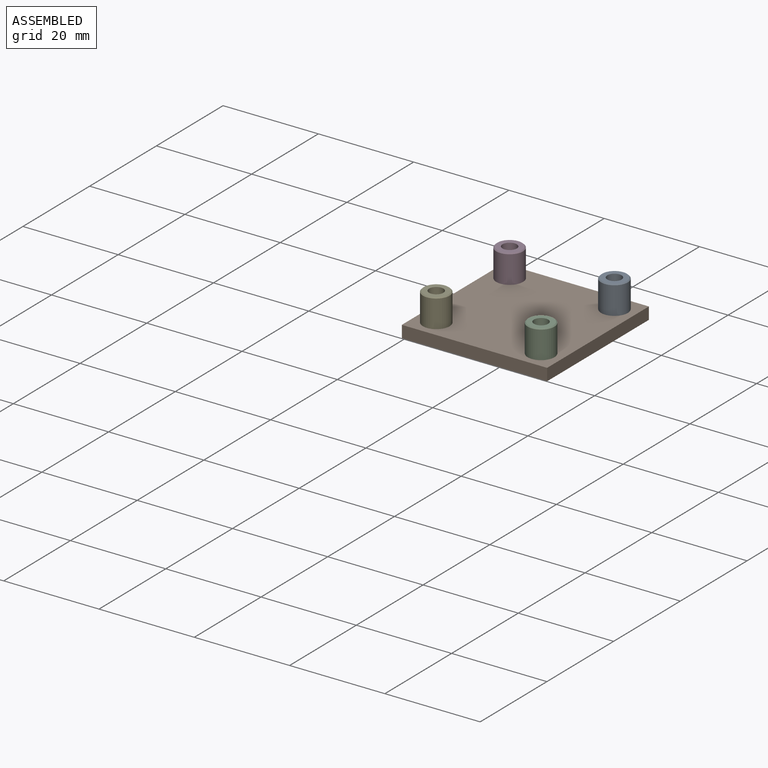
[diagram: assembled view]
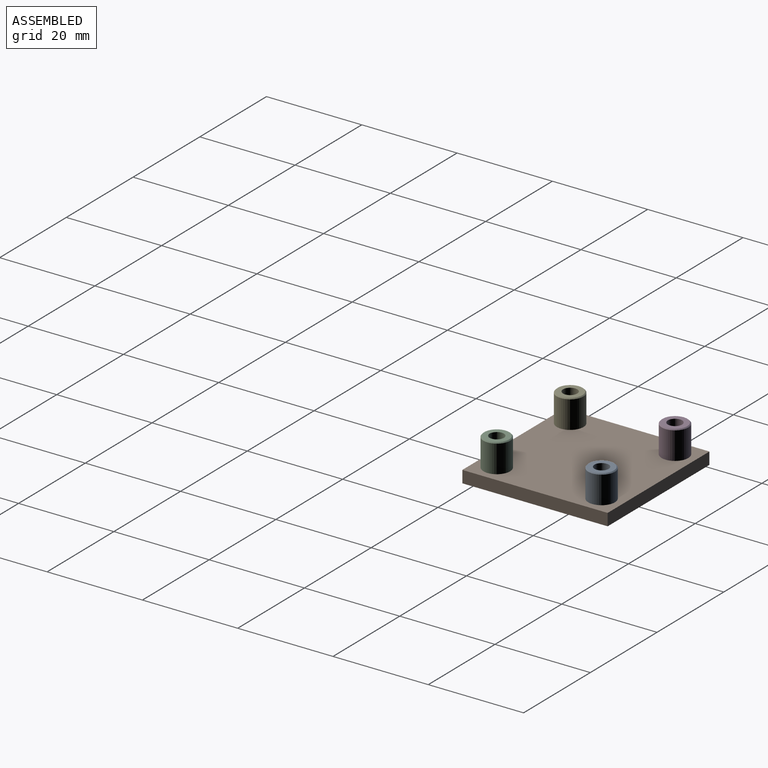
[diagram: assembled view, second angle]
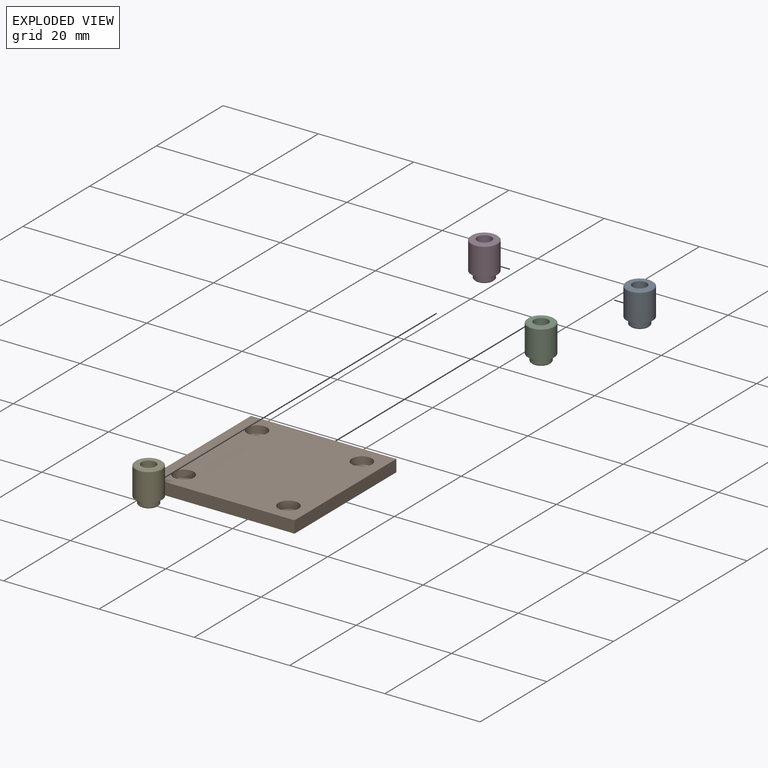
[diagram: exploded view]
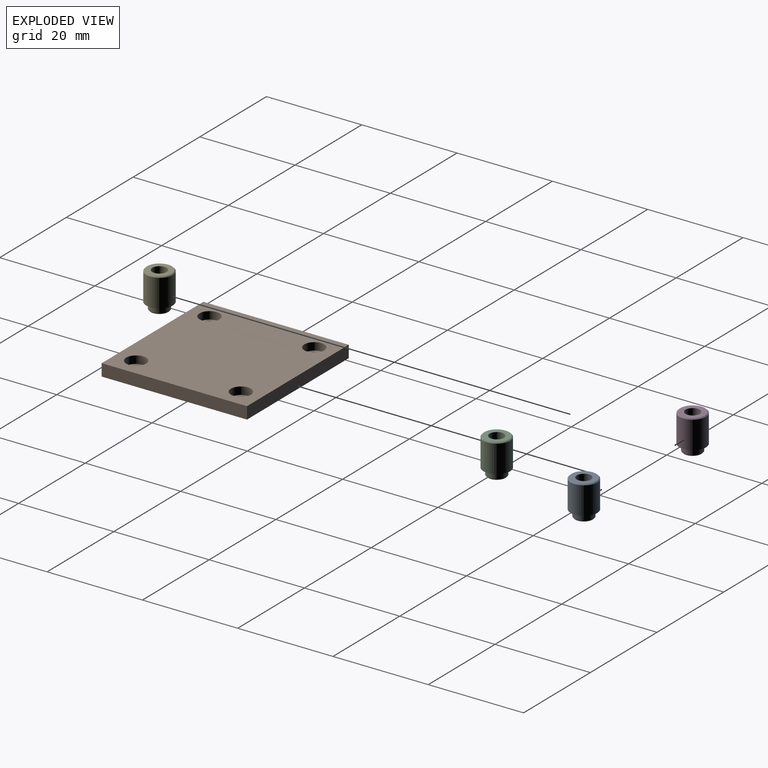
[diagram: exploded view, second angle]
ASSEMBLY  parts=5 mates=4
PART A: 8 faces, bbox 5.6x5.6x7.5 mm
  f0: plane 5.2x5.2mm, normal (0,0,1), area 14.2mm2, adj f5,f7
  f1: plane 3.6x3.6mm, normal (0,0,-1), area 3.1mm2, adj f5,f6
  f2: cylinder r=2mm len=4mm, axis (0,0,1), area 16.7mm2, adj f3,f6
  f3: plane 5.6x5.6mm, normal (0,0,-1), area 12.1mm2, adj f2,f4
  f4: cylinder r=2.8mm len=5.8mm, axis (0,0,1), area 102mm2, adj f3,f7
  f5: cylinder r=1.5mm len=7.53mm, axis (0,0,1), area 71mm2, adj f0,f1
  f6: cone r=2mm half-angle=45deg, axis (0,0,1), area 3.4mm2, adj f1,f2
  f7: cone r=2.6mm half-angle=45deg, axis (0,0,-1), area 4.8mm2, adj f0,f4
PART B: 334 faces, bbox 30.5x30.5x2.6 mm
  f0: plane 30.5x2.54mm, normal (0,1,0), area 77.5mm2, adj f1,f3,f4,f5
  f1: plane 30.5x2.54mm, normal (-1,0,0), area 77.5mm2, adj f0,f2,f4,f5
  f2: plane 30.5x2.54mm, normal (0,-1,0), area 77.5mm2, adj f1,f3,f4,f5
  f3: plane 30.5x2.54mm, normal (1,0,0), area 77.5mm2, adj f0,f2,f4,f5
  f4: plane 30.5x30.5mm, normal (0,0,1), area 874.3mm2, adj f0,f1,f2,f3,f326,f328,f330,f332
  f5: plane 30.5x30.5mm, normal (0,0,-1), area 146.2mm2, adj f0,f1,f2,f3,f6,f7,f8,f9
  f6: plane 3.5x0.1mm, normal (-1,0,0), area 0.4mm2, adj f5,f7,f9,f10
  f7: plane 3.5x0.1mm, normal (0,1,0), area 0.4mm2, adj f5,f6,f8,f10
  f8: plane 3.5x0.1mm, normal (1,0,0), area 0.4mm2, adj f5,f7,f9,f10
  f9: plane 3.5x0.1mm, normal (0,-1,0), area 0.4mm2, adj f5,f6,f8,f10
  f10: plane 3.5x3.5mm, normal (0,0,-1), area 12.2mm2, adj f6,f7,f8,f9
  f11: plane 3.5x0.1mm, normal (-1,0,0), area 0.4mm2, adj f5,f12,f14,f15
  f12: plane 3.5x0.1mm, normal (0,1,0), area 0.4mm2, adj f5,f11,f13,f15
  f13: plane 3.5x0.1mm, normal (1,0,0), area 0.4mm2, adj f5,f12,f14,f15
  f14: plane 3.5x0.1mm, normal (0,-1,0), area 0.4mm2, adj f5,f11,f13,f15
  f15: plane 3.5x3.5mm, normal (0,0,-1), area 12.2mm2, adj f11,f12,f13,f14
  f16: plane 3.5x0.1mm, normal (-1,0,0), area 0.4mm2, adj f5,f17,f19,f20
  f17: plane 3.5x0.1mm, normal (0,1,0), area 0.4mm2, adj f5,f16,f18,f20
  f18: plane 3.5x0.1mm, normal (1,0,0), area 0.4mm2, adj f5,f17,f19,f20
  f19: plane 3.5x0.1mm, normal (0,-1,0), area 0.4mm2, adj f5,f16,f18,f20
  f20: plane 3.5x3.5mm, normal (0,0,-1), area 12.2mm2, adj f16,f17,f18,f19
  f21: plane 3.5x0.1mm, normal (-1,0,0), area 0.4mm2, adj f5,f22,f24,f25
  f22: plane 3.5x0.1mm, normal (0,1,0), area 0.4mm2, adj f5,f21,f23,f25
  f23: plane 3.5x0.1mm, normal (1,0,0), area 0.4mm2, adj f5,f22,f24,f25
  f24: plane 3.5x0.1mm, normal (0,-1,0), area 0.4mm2, adj f5,f21,f23,f25
  f25: plane 3.5x3.5mm, normal (0,0,-1), area 12.2mm2, adj f21,f22,f23,f24
  f26: plane 3.5x0.1mm, normal (-1,0,0), area 0.4mm2, adj f5,f27,f29,f30
  f27: plane 3.5x0.1mm, normal (0,1,0), area 0.4mm2, adj f5,f26,f28,f30
  f28: plane 3.5x0.1mm, normal (1,0,0), area 0.4mm2, adj f5,f27,f29,f30
  f29: plane 3.5x0.1mm, normal (0,-1,0), area 0.4mm2, adj f5,f26,f28,f30
  f30: plane 3.5x3.5mm, normal (0,0,-1), area 12.2mm2, adj f26,f27,f28,f29
  f31: plane 3.5x0.1mm, normal (-1,0,0), area 0.4mm2, adj f5,f32,f34,f35
  f32: plane 3.5x0.1mm, normal (0,1,0), area 0.4mm2, adj f5,f31,f33,f35
  f33: plane 3.5x0.1mm, normal (1,0,0), area 0.4mm2, adj f5,f32,f34,f35
  f34: plane 3.5x0.1mm, normal (0,-1,0), area 0.4mm2, adj f5,f31,f33,f35
  f35: plane 3.5x3.5mm, normal (0,0,-1), area 12.2mm2, adj f31,f32,f33,f34
  f36: plane 3.5x0.1mm, normal (-1,0,0), area 0.4mm2, adj f5,f37,f39,f40
  f37: plane 3.5x0.1mm, normal (0,1,0), area 0.4mm2, adj f5,f36,f38,f40
  f38: plane 3.5x0.1mm, normal (1,0,0), area 0.4mm2, adj f5,f37,f39,f40
  f39: plane 3.5x0.1mm, normal (0,-1,0), area 0.4mm2, adj f5,f36,f38,f40
  f40: plane 3.5x3.5mm, normal (0,0,-1), area 12.2mm2, adj f36,f37,f38,f39
  f41: plane 3.5x0.1mm, normal (-1,0,0), area 0.4mm2, adj f5,f42,f44,f45
  f42: plane 3.5x0.1mm, normal (0,1,0), area 0.4mm2, adj f5,f41,f43,f45
  f43: plane 3.5x0.1mm, normal (1,0,0), area 0.4mm2, adj f5,f42,f44,f45
  f44: plane 3.5x0.1mm, normal (0,-1,0), area 0.4mm2, adj f5,f41,f43,f45
  f45: plane 3.5x3.5mm, normal (0,0,-1), area 12.2mm2, adj f41,f42,f43,f44
  f46: plane 3.5x0.1mm, normal (-1,0,0), area 0.4mm2, adj f5,f47,f49,f50
  f47: plane 3.5x0.1mm, normal (0,1,0), area 0.4mm2, adj f5,f46,f48,f50
  f48: plane 3.5x0.1mm, normal (1,0,0), area 0.4mm2, adj f5,f47,f49,f50
  f49: plane 3.5x0.1mm, normal (0,-1,0), area 0.4mm2, adj f5,f46,f48,f50
  f50: plane 3.5x3.5mm, normal (0,0,-1), area 12.2mm2, adj f46,f47,f48,f49
  f51: plane 3.5x0.1mm, normal (-1,0,0), area 0.4mm2, adj f5,f52,f54,f55
  f52: plane 3.5x0.1mm, normal (0,1,0), area 0.4mm2, adj f5,f51,f53,f55
  f53: plane 3.5x0.1mm, normal (1,0,0), area 0.4mm2, adj f5,f52,f54,f55
  f54: plane 3.5x0.1mm, normal (0,-1,0), area 0.4mm2, adj f5,f51,f53,f55
  f55: plane 3.5x3.5mm, normal (0,0,-1), area 12.2mm2, adj f51,f52,f53,f54
  f56: plane 3.5x0.1mm, normal (-1,0,0), area 0.4mm2, adj f5,f57,f59,f60
  f57: plane 3.5x0.1mm, normal (0,1,0), area 0.4mm2, adj f5,f56,f58,f60
  f58: plane 3.5x0.1mm, normal (1,0,0), area 0.4mm2, adj f5,f57,f59,f60
  f59: plane 3.5x0.1mm, normal (0,-1,0), area 0.4mm2, adj f5,f56,f58,f60
  f60: plane 3.5x3.5mm, normal (0,0,-1), area 12.2mm2, adj f56,f57,f58,f59
  f61: plane 3.5x0.1mm, normal (-1,0,0), area 0.4mm2, adj f5,f62,f64,f65
  f62: plane 3.5x0.1mm, normal (0,1,0), area 0.4mm2, adj f5,f61,f63,f65
  f63: plane 3.5x0.1mm, normal (1,0,0), area 0.4mm2, adj f5,f62,f64,f65
  f64: plane 3.5x0.1mm, normal (0,-1,0), area 0.4mm2, adj f5,f61,f63,f65
  f65: plane 3.5x3.5mm, normal (0,0,-1), area 12.2mm2, adj f61,f62,f63,f64
  f66: plane 3.5x0.1mm, normal (-1,0,0), area 0.4mm2, adj f5,f67,f69,f70
  f67: plane 3.5x0.1mm, normal (0,1,0), area 0.4mm2, adj f5,f66,f68,f70
  f68: plane 3.5x0.1mm, normal (1,0,0), area 0.4mm2, adj f5,f67,f69,f70
  f69: plane 3.5x0.1mm, normal (0,-1,0), area 0.4mm2, adj f5,f66,f68,f70
  f70: plane 3.5x3.5mm, normal (0,0,-1), area 12.2mm2, adj f66,f67,f68,f69
  f71: plane 3.5x0.1mm, normal (-1,0,0), area 0.4mm2, adj f5,f72,f74,f75
  f72: plane 3.5x0.1mm, normal (0,1,0), area 0.4mm2, adj f5,f71,f73,f75
  f73: plane 3.5x0.1mm, normal (1,0,0), area 0.4mm2, adj f5,f72,f74,f75
  f74: plane 3.5x0.1mm, normal (0,-1,0), area 0.4mm2, adj f5,f71,f73,f75
  f75: plane 3.5x3.5mm, normal (0,0,-1), area 12.2mm2, adj f71,f72,f73,f74
  f76: plane 3.5x0.1mm, normal (-1,0,0), area 0.4mm2, adj f5,f77,f79,f80
  f77: plane 3.5x0.1mm, normal (0,1,0), area 0.4mm2, adj f5,f76,f78,f80
  f78: plane 3.5x0.1mm, normal (1,0,0), area 0.4mm2, adj f5,f77,f79,f80
  f79: plane 3.5x0.1mm, normal (0,-1,0), area 0.4mm2, adj f5,f76,f78,f80
  f80: plane 3.5x3.5mm, normal (0,0,-1), area 12.2mm2, adj f76,f77,f78,f79
  f81: plane 3.5x0.1mm, normal (-1,0,0), area 0.4mm2, adj f5,f82,f84,f85
  f82: plane 3.5x0.1mm, normal (0,1,0), area 0.4mm2, adj f5,f81,f83,f85
  f83: plane 3.5x0.1mm, normal (1,0,0), area 0.4mm2, adj f5,f82,f84,f85
  f84: plane 3.5x0.1mm, normal (0,-1,0), area 0.4mm2, adj f5,f81,f83,f85
  f85: plane 3.5x3.5mm, normal (0,0,-1), area 12.2mm2, adj f81,f82,f83,f84
  f86: plane 3.5x0.1mm, normal (-1,0,0), area 0.4mm2, adj f5,f87,f89,f90
  f87: plane 3.5x0.1mm, normal (0,1,0), area 0.4mm2, adj f5,f86,f88,f90
  f88: plane 3.5x0.1mm, normal (1,0,0), area 0.4mm2, adj f5,f87,f89,f90
  f89: plane 3.5x0.1mm, normal (0,-1,0), area 0.4mm2, adj f5,f86,f88,f90
  f90: plane 3.5x3.5mm, normal (0,0,-1), area 12.2mm2, adj f86,f87,f88,f89
  f91: plane 3.5x0.1mm, normal (-1,0,0), area 0.4mm2, adj f5,f92,f94,f95
  f92: plane 3.5x0.1mm, normal (0,1,0), area 0.4mm2, adj f5,f91,f93,f95
  f93: plane 3.5x0.1mm, normal (1,0,0), area 0.4mm2, adj f5,f92,f94,f95
  f94: plane 3.5x0.1mm, normal (0,-1,0), area 0.4mm2, adj f5,f91,f93,f95
  f95: plane 3.5x3.5mm, normal (0,0,-1), area 12.2mm2, adj f91,f92,f93,f94
  f96: plane 3.5x0.1mm, normal (-1,0,0), area 0.4mm2, adj f5,f97,f99,f100
  f97: plane 3.5x0.1mm, normal (0,1,0), area 0.4mm2, adj f5,f96,f98,f100
  f98: plane 3.5x0.1mm, normal (1,0,0), area 0.4mm2, adj f5,f97,f99,f100
  f99: plane 3.5x0.1mm, normal (0,-1,0), area 0.4mm2, adj f5,f96,f98,f100
  f100: plane 3.5x3.5mm, normal (0,0,-1), area 12.2mm2, adj f96,f97,f98,f99
  f101: plane 3.5x0.1mm, normal (-1,0,0), area 0.4mm2, adj f5,f102,f104,f105
  f102: plane 3.5x0.1mm, normal (0,1,0), area 0.4mm2, adj f5,f101,f103,f105
  f103: plane 3.5x0.1mm, normal (1,0,0), area 0.4mm2, adj f5,f102,f104,f105
  f104: plane 3.5x0.1mm, normal (0,-1,0), area 0.4mm2, adj f5,f101,f103,f105
  f105: plane 3.5x3.5mm, normal (0,0,-1), area 12.2mm2, adj f101,f102,f103,f104
  f106: plane 3.5x0.1mm, normal (-1,0,0), area 0.4mm2, adj f5,f107,f109,f110
  f107: plane 3.5x0.1mm, normal (0,1,0), area 0.4mm2, adj f5,f106,f108,f110
  f108: plane 3.5x0.1mm, normal (1,0,0), area 0.4mm2, adj f5,f107,f109,f110
  f109: plane 3.5x0.1mm, normal (0,-1,0), area 0.4mm2, adj f5,f106,f108,f110
  f110: plane 3.5x3.5mm, normal (0,0,-1), area 12.2mm2, adj f106,f107,f108,f109
  f111: plane 3.5x0.1mm, normal (-1,0,0), area 0.4mm2, adj f5,f112,f114,f115
  f112: plane 3.5x0.1mm, normal (0,1,0), area 0.4mm2, adj f5,f111,f113,f115
  f113: plane 3.5x0.1mm, normal (1,0,0), area 0.4mm2, adj f5,f112,f114,f115
  f114: plane 3.5x0.1mm, normal (0,-1,0), area 0.4mm2, adj f5,f111,f113,f115
  f115: plane 3.5x3.5mm, normal (0,0,-1), area 12.2mm2, adj f111,f112,f113,f114
  f116: plane 3.5x0.1mm, normal (-1,0,0), area 0.4mm2, adj f5,f117,f119,f120
  f117: plane 3.5x0.1mm, normal (0,1,0), area 0.4mm2, adj f5,f116,f118,f120
  f118: plane 3.5x0.1mm, normal (1,0,0), area 0.4mm2, adj f5,f117,f119,f120
  f119: plane 3.5x0.1mm, normal (0,-1,0), area 0.4mm2, adj f5,f116,f118,f120
  f120: plane 3.5x3.5mm, normal (0,0,-1), area 12.2mm2, adj f116,f117,f118,f119
  f121: plane 3.5x0.1mm, normal (-1,0,0), area 0.4mm2, adj f5,f122,f124,f125
  f122: plane 3.5x0.1mm, normal (0,1,0), area 0.4mm2, adj f5,f121,f123,f125
  f123: plane 3.5x0.1mm, normal (1,0,0), area 0.4mm2, adj f5,f122,f124,f125
  f124: plane 3.5x0.1mm, normal (0,-1,0), area 0.4mm2, adj f5,f121,f123,f125
  f125: plane 3.5x3.5mm, normal (0,0,-1), area 12.2mm2, adj f121,f122,f123,f124
  f126: plane 3.5x0.1mm, normal (-1,0,0), area 0.4mm2, adj f5,f127,f129,f130
  f127: plane 3.5x0.1mm, normal (0,1,0), area 0.4mm2, adj f5,f126,f128,f130
  f128: plane 3.5x0.1mm, normal (1,0,0), area 0.4mm2, adj f5,f127,f129,f130
  f129: plane 3.5x0.1mm, normal (0,-1,0), area 0.4mm2, adj f5,f126,f128,f130
  f130: plane 3.5x3.5mm, normal (0,0,-1), area 12.2mm2, adj f126,f127,f128,f129
  f131: plane 3.5x0.1mm, normal (-1,0,0), area 0.4mm2, adj f5,f132,f134,f135
  f132: plane 3.5x0.1mm, normal (0,1,0), area 0.4mm2, adj f5,f131,f133,f135
  f133: plane 3.5x0.1mm, normal (1,0,0), area 0.4mm2, adj f5,f132,f134,f135
  f134: plane 3.5x0.1mm, normal (0,-1,0), area 0.4mm2, adj f5,f131,f133,f135
  f135: plane 3.5x3.5mm, normal (0,0,-1), area 12.2mm2, adj f131,f132,f133,f134
  f136: plane 3.5x0.1mm, normal (-1,0,0), area 0.4mm2, adj f5,f137,f139,f140
  f137: plane 3.5x0.1mm, normal (0,1,0), area 0.4mm2, adj f5,f136,f138,f140
  f138: plane 3.5x0.1mm, normal (1,0,0), area 0.4mm2, adj f5,f137,f139,f140
  f139: plane 3.5x0.1mm, normal (0,-1,0), area 0.4mm2, adj f5,f136,f138,f140
  f140: plane 3.5x3.5mm, normal (0,0,-1), area 12.2mm2, adj f136,f137,f138,f139
  f141: plane 3.5x0.1mm, normal (-1,0,0), area 0.4mm2, adj f5,f142,f144,f145
  f142: plane 3.5x0.1mm, normal (0,1,0), area 0.4mm2, adj f5,f141,f143,f145
  f143: plane 3.5x0.1mm, normal (1,0,0), area 0.4mm2, adj f5,f142,f144,f145
  f144: plane 3.5x0.1mm, normal (0,-1,0), area 0.4mm2, adj f5,f141,f143,f145
  f145: plane 3.5x3.5mm, normal (0,0,-1), area 12.2mm2, adj f141,f142,f143,f144
  f146: plane 3.5x0.1mm, normal (-1,0,0), area 0.4mm2, adj f5,f147,f149,f150
  f147: plane 3.5x0.1mm, normal (0,1,0), area 0.4mm2, adj f5,f146,f148,f150
  f148: plane 3.5x0.1mm, normal (1,0,0), area 0.4mm2, adj f5,f147,f149,f150
  f149: plane 3.5x0.1mm, normal (0,-1,0), area 0.4mm2, adj f5,f146,f148,f150
  f150: plane 3.5x3.5mm, normal (0,0,-1), area 12.2mm2, adj f146,f147,f148,f149
  f151: plane 3.5x0.1mm, normal (-1,0,0), area 0.4mm2, adj f5,f152,f154,f155
  f152: plane 3.5x0.1mm, normal (0,1,0), area 0.4mm2, adj f5,f151,f153,f155
  f153: plane 3.5x0.1mm, normal (1,0,0), area 0.4mm2, adj f5,f152,f154,f155
  f154: plane 3.5x0.1mm, normal (0,-1,0), area 0.4mm2, adj f5,f151,f153,f155
  f155: plane 3.5x3.5mm, normal (0,0,-1), area 12.2mm2, adj f151,f152,f153,f154
  f156: plane 3.5x0.1mm, normal (-1,0,0), area 0.4mm2, adj f5,f157,f159,f160
  f157: plane 3.5x0.1mm, normal (0,1,0), area 0.4mm2, adj f5,f156,f158,f160
  f158: plane 3.5x0.1mm, normal (1,0,0), area 0.4mm2, adj f5,f157,f159,f160
  f159: plane 3.5x0.1mm, normal (0,-1,0), area 0.4mm2, adj f5,f156,f158,f160
  f160: plane 3.5x3.5mm, normal (0,0,-1), area 12.2mm2, adj f156,f157,f158,f159
  f161: plane 3.5x0.1mm, normal (-1,0,0), area 0.4mm2, adj f5,f162,f164,f165
  f162: plane 3.5x0.1mm, normal (0,1,0), area 0.4mm2, adj f5,f161,f163,f165
  f163: plane 3.5x0.1mm, normal (1,0,0), area 0.4mm2, adj f5,f162,f164,f165
  f164: plane 3.5x0.1mm, normal (0,-1,0), area 0.4mm2, adj f5,f161,f163,f165
  f165: plane 3.5x3.5mm, normal (0,0,-1), area 12.2mm2, adj f161,f162,f163,f164
  f166: plane 3.5x0.1mm, normal (-1,0,0), area 0.4mm2, adj f5,f167,f169,f170
  f167: plane 3.5x0.1mm, normal (0,1,0), area 0.4mm2, adj f5,f166,f168,f170
  f168: plane 3.5x0.1mm, normal (1,0,0), area 0.4mm2, adj f5,f167,f169,f170
  f169: plane 3.5x0.1mm, normal (0,-1,0), area 0.4mm2, adj f5,f166,f168,f170
  f170: plane 3.5x3.5mm, normal (0,0,-1), area 12.2mm2, adj f166,f167,f168,f169
  f171: plane 3.5x0.1mm, normal (-1,0,0), area 0.4mm2, adj f5,f172,f174,f175
  f172: plane 3.5x0.1mm, normal (0,1,0), area 0.4mm2, adj f5,f171,f173,f175
  f173: plane 3.5x0.1mm, normal (1,0,0), area 0.4mm2, adj f5,f172,f174,f175
  f174: plane 3.5x0.1mm, normal (0,-1,0), area 0.4mm2, adj f5,f171,f173,f175
  f175: plane 3.5x3.5mm, normal (0,0,-1), area 12.2mm2, adj f171,f172,f173,f174
  f176: plane 3.5x0.1mm, normal (-1,0,0), area 0.4mm2, adj f5,f177,f179,f180
  f177: plane 3.5x0.1mm, normal (0,1,0), area 0.4mm2, adj f5,f176,f178,f180
  f178: plane 3.5x0.1mm, normal (1,0,0), area 0.4mm2, adj f5,f177,f179,f180
  f179: plane 3.5x0.1mm, normal (0,-1,0), area 0.4mm2, adj f5,f176,f178,f180
  f180: plane 3.5x3.5mm, normal (0,0,-1), area 12.2mm2, adj f176,f177,f178,f179
  f181: plane 3.5x0.1mm, normal (-1,0,0), area 0.4mm2, adj f5,f182,f184,f185
  f182: plane 3.5x0.1mm, normal (0,1,0), area 0.4mm2, adj f5,f181,f183,f185
  f183: plane 3.5x0.1mm, normal (1,0,0), area 0.4mm2, adj f5,f182,f184,f185
  f184: plane 3.5x0.1mm, normal (0,-1,0), area 0.4mm2, adj f5,f181,f183,f185
  f185: plane 3.5x3.5mm, normal (0,0,-1), area 12.2mm2, adj f181,f182,f183,f184
  f186: plane 3.5x0.1mm, normal (-1,0,0), area 0.4mm2, adj f5,f187,f189,f190
  f187: plane 3.5x0.1mm, normal (0,1,0), area 0.4mm2, adj f5,f186,f188,f190
  f188: plane 3.5x0.1mm, normal (1,0,0), area 0.4mm2, adj f5,f187,f189,f190
  f189: plane 3.5x0.1mm, normal (0,-1,0), area 0.4mm2, adj f5,f186,f188,f190
  f190: plane 3.5x3.5mm, normal (0,0,-1), area 12.2mm2, adj f186,f187,f188,f189
  f191: plane 3.5x0.1mm, normal (-1,0,0), area 0.4mm2, adj f5,f192,f194,f195
  f192: plane 3.5x0.1mm, normal (0,1,0), area 0.4mm2, adj f5,f191,f193,f195
  f193: plane 3.5x0.1mm, normal (1,0,0), area 0.4mm2, adj f5,f192,f194,f195
  f194: plane 3.5x0.1mm, normal (0,-1,0), area 0.4mm2, adj f5,f191,f193,f195
  f195: plane 3.5x3.5mm, normal (0,0,-1), area 12.2mm2, adj f191,f192,f193,f194
  f196: plane 3.5x0.1mm, normal (-1,0,0), area 0.4mm2, adj f5,f197,f199,f200
  f197: plane 3.5x0.1mm, normal (0,1,0), area 0.4mm2, adj f5,f196,f198,f200
  f198: plane 3.5x0.1mm, normal (1,0,0), area 0.4mm2, adj f5,f197,f199,f200
  f199: plane 3.5x0.1mm, normal (0,-1,0), area 0.4mm2, adj f5,f196,f198,f200
  f200: plane 3.5x3.5mm, normal (0,0,-1), area 12.2mm2, adj f196,f197,f198,f199
  f201: plane 3.5x0.1mm, normal (-1,0,0), area 0.4mm2, adj f5,f202,f204,f205
  f202: plane 3.5x0.1mm, normal (0,1,0), area 0.4mm2, adj f5,f201,f203,f205
  f203: plane 3.5x0.1mm, normal (1,0,0), area 0.4mm2, adj f5,f202,f204,f205
  f204: plane 3.5x0.1mm, normal (0,-1,0), area 0.4mm2, adj f5,f201,f203,f205
  f205: plane 3.5x3.5mm, normal (0,0,-1), area 12.2mm2, adj f201,f202,f203,f204
  f206: plane 3.5x0.1mm, normal (-1,0,0), area 0.4mm2, adj f5,f207,f209,f210
  f207: plane 3.5x0.1mm, normal (0,1,0), area 0.4mm2, adj f5,f206,f208,f210
  f208: plane 3.5x0.1mm, normal (1,0,0), area 0.4mm2, adj f5,f207,f209,f210
  f209: plane 3.5x0.1mm, normal (0,-1,0), area 0.4mm2, adj f5,f206,f208,f210
  f210: plane 3.5x3.5mm, normal (0,0,-1), area 12.2mm2, adj f206,f207,f208,f209
  f211: plane 3.5x0.1mm, normal (-1,0,0), area 0.4mm2, adj f5,f212,f214,f215
  f212: plane 3.5x0.1mm, normal (0,1,0), area 0.4mm2, adj f5,f211,f213,f215
  f213: plane 3.5x0.1mm, normal (1,0,0), area 0.4mm2, adj f5,f212,f214,f215
  f214: plane 3.5x0.1mm, normal (0,-1,0), area 0.4mm2, adj f5,f211,f213,f215
  f215: plane 3.5x3.5mm, normal (0,0,-1), area 12.2mm2, adj f211,f212,f213,f214
  f216: plane 3.5x0.1mm, normal (-1,0,0), area 0.4mm2, adj f5,f217,f219,f220
  f217: plane 3.5x0.1mm, normal (0,1,0), area 0.4mm2, adj f5,f216,f218,f220
  f218: plane 3.5x0.1mm, normal (1,0,0), area 0.4mm2, adj f5,f217,f219,f220
  f219: plane 3.5x0.1mm, normal (0,-1,0), area 0.4mm2, adj f5,f216,f218,f220
  f220: plane 3.5x3.5mm, normal (0,0,-1), area 12.2mm2, adj f216,f217,f218,f219
  f221: plane 3.5x0.1mm, normal (-1,0,0), area 0.4mm2, adj f5,f222,f224,f225
  f222: plane 3.5x0.1mm, normal (0,1,0), area 0.4mm2, adj f5,f221,f223,f225
  f223: plane 3.5x0.1mm, normal (1,0,0), area 0.4mm2, adj f5,f222,f224,f225
  f224: plane 3.5x0.1mm, normal (0,-1,0), area 0.4mm2, adj f5,f221,f223,f225
  f225: plane 3.5x3.5mm, normal (0,0,-1), area 12.2mm2, adj f221,f222,f223,f224
  f226: plane 3.5x0.1mm, normal (-1,0,0), area 0.4mm2, adj f5,f227,f229,f230
  f227: plane 3.5x0.1mm, normal (0,1,0), area 0.4mm2, adj f5,f226,f228,f230
  f228: plane 3.5x0.1mm, normal (1,0,0), area 0.4mm2, adj f5,f227,f229,f230
  f229: plane 3.5x0.1mm, normal (0,-1,0), area 0.4mm2, adj f5,f226,f228,f230
  f230: plane 3.5x3.5mm, normal (0,0,-1), area 12.2mm2, adj f226,f227,f228,f229
  f231: plane 3.5x0.1mm, normal (-1,0,0), area 0.4mm2, adj f5,f232,f234,f235
  f232: plane 3.5x0.1mm, normal (0,1,0), area 0.4mm2, adj f5,f231,f233,f235
  f233: plane 3.5x0.1mm, normal (1,0,0), area 0.4mm2, adj f5,f232,f234,f235
  f234: plane 3.5x0.1mm, normal (0,-1,0), area 0.4mm2, adj f5,f231,f233,f235
  f235: plane 3.5x3.5mm, normal (0,0,-1), area 12.2mm2, adj f231,f232,f233,f234
  f236: plane 3.5x0.1mm, normal (-1,0,0), area 0.4mm2, adj f5,f237,f239,f240
  f237: plane 3.5x0.1mm, normal (0,1,0), area 0.4mm2, adj f5,f236,f238,f240
  f238: plane 3.5x0.1mm, normal (1,0,0), area 0.4mm2, adj f5,f237,f239,f240
  f239: plane 3.5x0.1mm, normal (0,-1,0), area 0.4mm2, adj f5,f236,f238,f240
  f240: plane 3.5x3.5mm, normal (0,0,-1), area 12.2mm2, adj f236,f237,f238,f239
  f241: plane 3.5x0.1mm, normal (-1,0,0), area 0.4mm2, adj f5,f242,f244,f245
  f242: plane 3.5x0.1mm, normal (0,1,0), area 0.4mm2, adj f5,f241,f243,f245
  f243: plane 3.5x0.1mm, normal (1,0,0), area 0.4mm2, adj f5,f242,f244,f245
  f244: plane 3.5x0.1mm, normal (0,-1,0), area 0.4mm2, adj f5,f241,f243,f245
  f245: plane 3.5x3.5mm, normal (0,0,-1), area 12.2mm2, adj f241,f242,f243,f244
  f246: plane 3.5x0.1mm, normal (-1,0,0), area 0.4mm2, adj f5,f247,f249,f250
  f247: plane 3.5x0.1mm, normal (0,1,0), area 0.4mm2, adj f5,f246,f248,f250
  f248: plane 3.5x0.1mm, normal (1,0,0), area 0.4mm2, adj f5,f247,f249,f250
  f249: plane 3.5x0.1mm, normal (0,-1,0), area 0.4mm2, adj f5,f246,f248,f250
  f250: plane 3.5x3.5mm, normal (0,0,-1), area 12.2mm2, adj f246,f247,f248,f249
  f251: plane 3.5x0.1mm, normal (-1,0,0), area 0.4mm2, adj f5,f252,f254,f255
  f252: plane 3.5x0.1mm, normal (0,1,0), area 0.4mm2, adj f5,f251,f253,f255
  f253: plane 3.5x0.1mm, normal (1,0,0), area 0.4mm2, adj f5,f252,f254,f255
  f254: plane 3.5x0.1mm, normal (0,-1,0), area 0.4mm2, adj f5,f251,f253,f255
  f255: plane 3.5x3.5mm, normal (0,0,-1), area 12.2mm2, adj f251,f252,f253,f254
  f256: plane 3.5x0.1mm, normal (-1,0,0), area 0.4mm2, adj f5,f257,f259,f260
  f257: plane 3.5x0.1mm, normal (0,1,0), area 0.4mm2, adj f5,f256,f258,f260
  f258: plane 3.5x0.1mm, normal (1,0,0), area 0.4mm2, adj f5,f257,f259,f260
  f259: plane 3.5x0.1mm, normal (0,-1,0), area 0.4mm2, adj f5,f256,f258,f260
  f260: plane 3.5x3.5mm, normal (0,0,-1), area 12.2mm2, adj f256,f257,f258,f259
  f261: plane 3.5x0.1mm, normal (-1,0,0), area 0.4mm2, adj f5,f262,f264,f265
  f262: plane 3.5x0.1mm, normal (0,1,0), area 0.4mm2, adj f5,f261,f263,f265
  f263: plane 3.5x0.1mm, normal (1,0,0), area 0.4mm2, adj f5,f262,f264,f265
  f264: plane 3.5x0.1mm, normal (0,-1,0), area 0.4mm2, adj f5,f261,f263,f265
  f265: plane 3.5x3.5mm, normal (0,0,-1), area 12.2mm2, adj f261,f262,f263,f264
  f266: plane 3.5x0.1mm, normal (-1,0,0), area 0.4mm2, adj f5,f267,f269,f270
  f267: plane 3.5x0.1mm, normal (0,1,0), area 0.4mm2, adj f5,f266,f268,f270
  f268: plane 3.5x0.1mm, normal (1,0,0), area 0.4mm2, adj f5,f267,f269,f270
  f269: plane 3.5x0.1mm, normal (0,-1,0), area 0.4mm2, adj f5,f266,f268,f270
  f270: plane 3.5x3.5mm, normal (0,0,-1), area 12.2mm2, adj f266,f267,f268,f269
  f271: plane 3.5x0.1mm, normal (-1,0,0), area 0.4mm2, adj f5,f272,f274,f275
  f272: plane 3.5x0.1mm, normal (0,1,0), area 0.4mm2, adj f5,f271,f273,f275
  f273: plane 3.5x0.1mm, normal (1,0,0), area 0.4mm2, adj f5,f272,f274,f275
  f274: plane 3.5x0.1mm, normal (0,-1,0), area 0.4mm2, adj f5,f271,f273,f275
  f275: plane 3.5x3.5mm, normal (0,0,-1), area 12.2mm2, adj f271,f272,f273,f274
  f276: plane 3.5x0.1mm, normal (-1,0,0), area 0.4mm2, adj f5,f277,f279,f280
  f277: plane 3.5x0.1mm, normal (0,1,0), area 0.4mm2, adj f5,f276,f278,f280
  f278: plane 3.5x0.1mm, normal (1,0,0), area 0.4mm2, adj f5,f277,f279,f280
  f279: plane 3.5x0.1mm, normal (0,-1,0), area 0.4mm2, adj f5,f276,f278,f280
  f280: plane 3.5x3.5mm, normal (0,0,-1), area 12.2mm2, adj f276,f277,f278,f279
  f281: plane 3.5x0.1mm, normal (-1,0,0), area 0.4mm2, adj f5,f282,f284,f285
  f282: plane 3.5x0.1mm, normal (0,1,0), area 0.4mm2, adj f5,f281,f283,f285
  f283: plane 3.5x0.1mm, normal (1,0,0), area 0.4mm2, adj f5,f282,f284,f285
  f284: plane 3.5x0.1mm, normal (0,-1,0), area 0.4mm2, adj f5,f281,f283,f285
  f285: plane 3.5x3.5mm, normal (0,0,-1), area 12.2mm2, adj f281,f282,f283,f284
  f286: plane 3.5x0.1mm, normal (-1,0,0), area 0.4mm2, adj f5,f287,f289,f290
  f287: plane 3.5x0.1mm, normal (0,1,0), area 0.4mm2, adj f5,f286,f288,f290
  f288: plane 3.5x0.1mm, normal (1,0,0), area 0.4mm2, adj f5,f287,f289,f290
  f289: plane 3.5x0.1mm, normal (0,-1,0), area 0.4mm2, adj f5,f286,f288,f290
  f290: plane 3.5x3.5mm, normal (0,0,-1), area 12.2mm2, adj f286,f287,f288,f289
  f291: plane 3.5x0.1mm, normal (-1,0,0), area 0.4mm2, adj f5,f292,f294,f295
  f292: plane 3.5x0.1mm, normal (0,1,0), area 0.4mm2, adj f5,f291,f293,f295
  f293: plane 3.5x0.1mm, normal (1,0,0), area 0.4mm2, adj f5,f292,f294,f295
  f294: plane 3.5x0.1mm, normal (0,-1,0), area 0.4mm2, adj f5,f291,f293,f295
  f295: plane 3.5x3.5mm, normal (0,0,-1), area 12.2mm2, adj f291,f292,f293,f294
  f296: plane 3.5x0.1mm, normal (-1,0,0), area 0.4mm2, adj f5,f297,f299,f300
  f297: plane 3.5x0.1mm, normal (0,1,0), area 0.4mm2, adj f5,f296,f298,f300
  f298: plane 3.5x0.1mm, normal (1,0,0), area 0.4mm2, adj f5,f297,f299,f300
  f299: plane 3.5x0.1mm, normal (0,-1,0), area 0.4mm2, adj f5,f296,f298,f300
  f300: plane 3.5x3.5mm, normal (0,0,-1), area 12.2mm2, adj f296,f297,f298,f299
  f301: plane 3.5x0.1mm, normal (-1,0,0), area 0.4mm2, adj f5,f302,f304,f305
  f302: plane 3.5x0.1mm, normal (0,1,0), area 0.4mm2, adj f5,f301,f303,f305
  f303: plane 3.5x0.1mm, normal (1,0,0), area 0.4mm2, adj f5,f302,f304,f305
  f304: plane 3.5x0.1mm, normal (0,-1,0), area 0.4mm2, adj f5,f301,f303,f305
  f305: plane 3.5x3.5mm, normal (0,0,-1), area 12.2mm2, adj f301,f302,f303,f304
  f306: plane 3.5x0.1mm, normal (-1,0,0), area 0.4mm2, adj f5,f307,f309,f310
  f307: plane 3.5x0.1mm, normal (0,1,0), area 0.4mm2, adj f5,f306,f308,f310
  f308: plane 3.5x0.1mm, normal (1,0,0), area 0.4mm2, adj f5,f307,f309,f310
  f309: plane 3.5x0.1mm, normal (0,-1,0), area 0.4mm2, adj f5,f306,f308,f310
  f310: plane 3.5x3.5mm, normal (0,0,-1), area 12.2mm2, adj f306,f307,f308,f309
  f311: plane 3.5x0.1mm, normal (-1,0,0), area 0.4mm2, adj f5,f312,f314,f315
  f312: plane 3.5x0.1mm, normal (0,1,0), area 0.4mm2, adj f5,f311,f313,f315
  f313: plane 3.5x0.1mm, normal (1,0,0), area 0.4mm2, adj f5,f312,f314,f315
  f314: plane 3.5x0.1mm, normal (0,-1,0), area 0.4mm2, adj f5,f311,f313,f315
  f315: plane 3.5x3.5mm, normal (0,0,-1), area 12.2mm2, adj f311,f312,f313,f314
  f316: plane 3.5x0.1mm, normal (-1,0,0), area 0.4mm2, adj f5,f317,f319,f320
  f317: plane 3.5x0.1mm, normal (0,1,0), area 0.4mm2, adj f5,f316,f318,f320
  f318: plane 3.5x0.1mm, normal (1,0,0), area 0.4mm2, adj f5,f317,f319,f320
  f319: plane 3.5x0.1mm, normal (0,-1,0), area 0.4mm2, adj f5,f316,f318,f320
  f320: plane 3.5x3.5mm, normal (0,0,-1), area 12.2mm2, adj f316,f317,f318,f319
  f321: plane 3.5x0.1mm, normal (-1,0,0), area 0.4mm2, adj f5,f322,f324,f325
  f322: plane 3.5x0.1mm, normal (0,1,0), area 0.4mm2, adj f5,f321,f323,f325
  f323: plane 3.5x0.1mm, normal (1,0,0), area 0.4mm2, adj f5,f322,f324,f325
  f324: plane 3.5x0.1mm, normal (0,-1,0), area 0.4mm2, adj f5,f321,f323,f325
  f325: plane 3.5x3.5mm, normal (0,0,-1), area 12.2mm2, adj f321,f322,f323,f324
  f326: cylinder r=2.11mm len=4.22mm, axis (0,0,1), area 21.2mm2, adj f4,f327
  f327: plane 4.22x4.22mm, normal (0,0,1), area 14mm2, adj f326
  f328: cylinder r=2.11mm len=4.22mm, axis (0,0,1), area 21.2mm2, adj f4,f329
  f329: plane 4.22x4.22mm, normal (0,0,1), area 14mm2, adj f328
  f330: cylinder r=2.11mm len=4.22mm, axis (0,0,1), area 21.2mm2, adj f4,f331
  f331: plane 4.22x4.22mm, normal (0,0,1), area 14mm2, adj f330
  f332: cylinder r=2.11mm len=4.22mm, axis (0,0,1), area 21.2mm2, adj f4,f333
  f333: plane 4.22x4.22mm, normal (0,0,1), area 14mm2, adj f332
PART C: same geometry as A
PART D: same geometry as A
PART E: same geometry as A
PLACE A t=(26.65,5.02,7.36)mm
PLACE B t=(15.65,-5.98,4.82)mm fixed
PLACE C t=(26.65,-16.98,7.36)mm
PLACE D t=(4.65,5.02,7.36)mm
PLACE E t=(4.65,-16.98,7.36)mm
MATE fastened D.f7 <-> B.f330  axis (0,0,-1) through (4.65,5.02,7.36)mm
MATE fastened E.f7 <-> B.f326  axis (0,0,-1) through (4.65,-16.98,7.36)mm
MATE fastened C.f7 <-> B.f328  axis (0,0,-1) through (26.65,-16.98,7.36)mm
MATE fastened A.f7 <-> B.f332  axis (0,0,-1) through (26.65,5.02,7.36)mm
